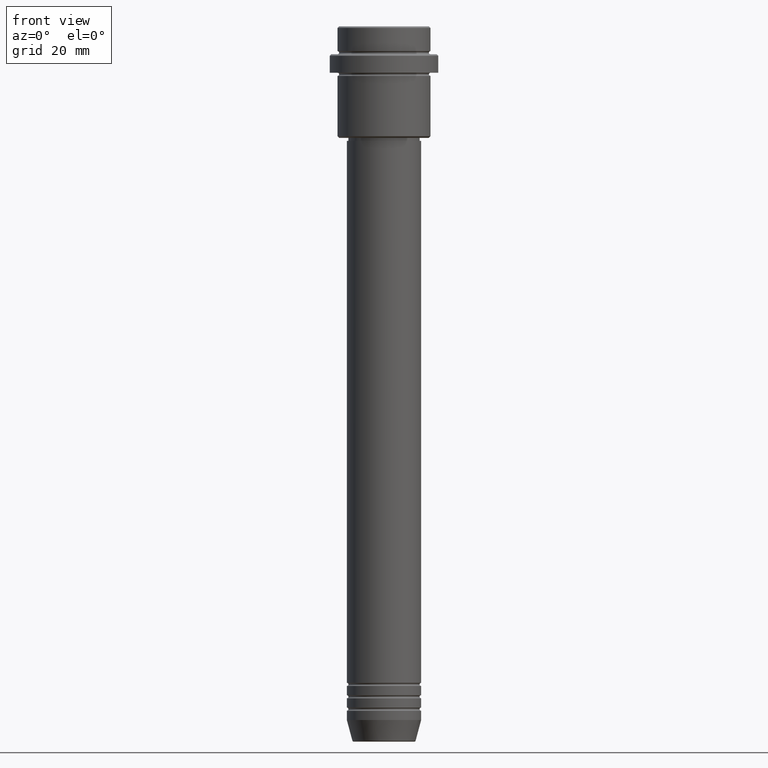
[diagram: clean part render]
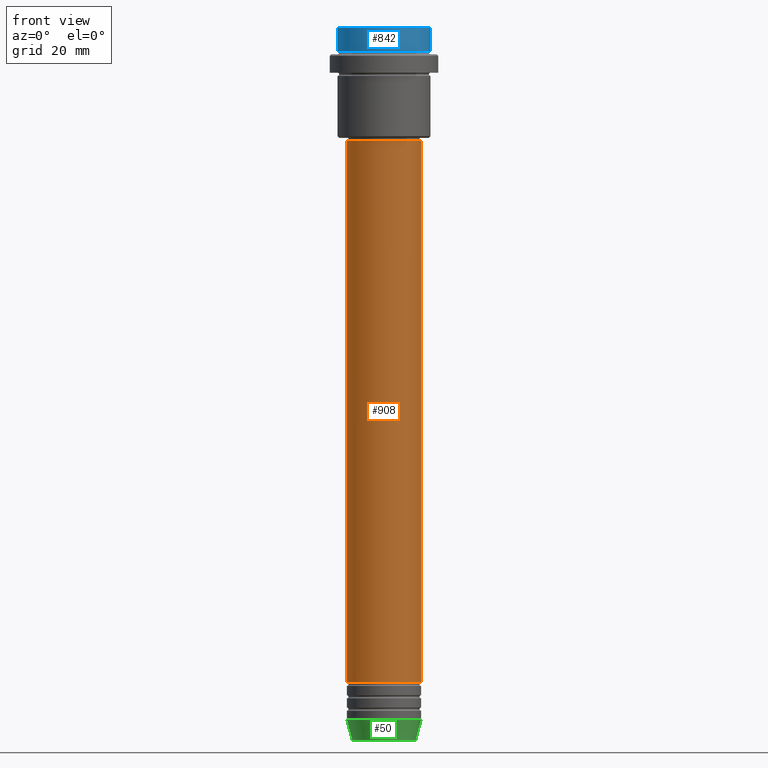
[diagram: same view with three faces highlighted in distinct colors, each labeled with its STEP entity id]
A machine part, front view with three faces highlighted in distinct colors.
Their STEP definitions:

[orange] entity #908 — the highlighted cylindrical surface (partial cylindrical patch) has radius 12 mm, axis along (-0, -0, 1).
#17 = ORIENTED_EDGE ( 'NONE', *, *, #1013, .T. ) ;
#45 = DIRECTION ( 'NONE',  ( 1.000000000000000000, 0.000000000000000000, 0.000000000000000000 ) ) ;
#125 = ORIENTED_EDGE ( 'NONE', *, *, #584, .F. ) ;
#150 = DIRECTION ( 'NONE',  ( 1.000000000000000000, 0.000000000000000000, 0.000000000000000000 ) ) ;
#192 = AXIS2_PLACEMENT_3D ( 'NONE', #869, #770, #150 ) ;
#195 = CARTESIAN_POINT ( 'NONE',  ( -11.99999999999999822, 1.469576158976823750E-15, -37.00000000000001421 ) ) ;
#223 = DIRECTION ( 'NONE',  ( 1.000000000000000000, 0.000000000000000000, 0.000000000000000000 ) ) ;
#261 = ORIENTED_EDGE ( 'NONE', *, *, #996, .F. ) ;
#293 = CARTESIAN_POINT ( 'NONE',  ( 12.00000000000000000, 0.000000000000000000, -211.9999999999999432 ) ) ;
#333 = FACE_OUTER_BOUND ( 'NONE', #503, .T. ) ;
#388 = VERTEX_POINT ( 'NONE', #293 ) ;
#443 = CARTESIAN_POINT ( 'NONE',  ( 12.00000000000000000, 0.000000000000000000, 0.000000000000000000 ) ) ;
#503 = EDGE_LOOP ( 'NONE', ( #125, #1326, #17, #261 ) ) ;
#515 = EDGE_CURVE ( 'NONE', #778, #388, #576, .T. ) ;
#558 = LINE ( 'NONE', #443, #1010 ) ;
#576 = CIRCLE ( 'NONE', #1375, 12.00000000000000000 ) ;
#584 = EDGE_CURVE ( 'NONE', #778, #1086, #936, .T. ) ;
#740 = AXIS2_PLACEMENT_3D ( 'NONE', #785, #1223, #223 ) ;
#763 = CIRCLE ( 'NONE', #740, 11.99999999999999822 ) ;
#770 = DIRECTION ( 'NONE',  ( -0.000000000000000000, -0.000000000000000000, 1.000000000000000000 ) ) ;
#778 = VERTEX_POINT ( 'NONE', #1208 ) ;
#785 = CARTESIAN_POINT ( 'NONE',  ( 0.000000000000000000, 0.000000000000000000, -37.00000000000001421 ) ) ;
#811 = VECTOR ( 'NONE', #1388, 1000.000000000000000 ) ;
#869 = CARTESIAN_POINT ( 'NONE',  ( 0.000000000000000000, 0.000000000000000000, 0.000000000000000000 ) ) ;
#908 = ADVANCED_FACE ( 'NONE', ( #333 ), #1074, .T. ) ;
#916 = CARTESIAN_POINT ( 'NONE',  ( 0.000000000000000000, 0.000000000000000000, -211.9999999999999432 ) ) ;
#921 = DIRECTION ( 'NONE',  ( -0.000000000000000000, -0.000000000000000000, 1.000000000000000000 ) ) ;
#936 = LINE ( 'NONE', #965, #811 ) ;
#965 = CARTESIAN_POINT ( 'NONE',  ( -12.00000000000000000, 1.469576158976823947E-15, 0.000000000000000000 ) ) ;
#996 = EDGE_CURVE ( 'NONE', #1086, #1336, #763, .T. ) ;
#1010 = VECTOR ( 'NONE', #1077, 1000.000000000000000 ) ;
#1013 = EDGE_CURVE ( 'NONE', #388, #1336, #558, .T. ) ;
#1074 = CYLINDRICAL_SURFACE ( 'NONE', #192, 12.00000000000000000 ) ;
#1077 = DIRECTION ( 'NONE',  ( -0.000000000000000000, -0.000000000000000000, 1.000000000000000000 ) ) ;
#1086 = VERTEX_POINT ( 'NONE', #195 ) ;
#1208 = CARTESIAN_POINT ( 'NONE',  ( -12.00000000000000000, 1.469576158976823947E-15, -211.9999999999999432 ) ) ;
#1223 = DIRECTION ( 'NONE',  ( -0.000000000000000000, -0.000000000000000000, 1.000000000000000000 ) ) ;
#1326 = ORIENTED_EDGE ( 'NONE', *, *, #515, .T. ) ;
#1336 = VERTEX_POINT ( 'NONE', #1410 ) ;
#1375 = AXIS2_PLACEMENT_3D ( 'NONE', #916, #921, #45 ) ;
#1388 = DIRECTION ( 'NONE',  ( -0.000000000000000000, -0.000000000000000000, 1.000000000000000000 ) ) ;
#1410 = CARTESIAN_POINT ( 'NONE',  ( 11.99999999999999822, 0.000000000000000000, -37.00000000000001421 ) ) ;

[blue] entity #842 — the highlighted cylindrical surface (partial cylindrical patch) has radius 15 mm, axis along (-0, -0, 1).
#15 = DIRECTION ( 'NONE',  ( -0.000000000000000000, -0.000000000000000000, 1.000000000000000000 ) ) ;
#86 = CARTESIAN_POINT ( 'NONE',  ( 15.00000000000000000, 0.000000000000000000, 0.000000000000000000 ) ) ;
#96 = DIRECTION ( 'NONE',  ( 0.000000000000000000, 0.000000000000000000, -1.000000000000000000 ) ) ;
#100 = EDGE_CURVE ( 'NONE', #270, #226, #1076, .T. ) ;
#101 = VERTEX_POINT ( 'NONE', #455 ) ;
#138 = VERTEX_POINT ( 'NONE', #241 ) ;
#206 = EDGE_CURVE ( 'NONE', #226, #101, #402, .T. ) ;
#220 = CARTESIAN_POINT ( 'NONE',  ( 15.00000000000000000, 0.000000000000000000, -7.999999999999998224 ) ) ;
#226 = VERTEX_POINT ( 'NONE', #220 ) ;
#241 = CARTESIAN_POINT ( 'NONE',  ( -15.00000000000000000, 1.836970198721029589E-15, -0.5000000000000108802 ) ) ;
#270 = VERTEX_POINT ( 'NONE', #812 ) ;
#271 = DIRECTION ( 'NONE',  ( -0.000000000000000000, -0.000000000000000000, 1.000000000000000000 ) ) ;
#296 = EDGE_CURVE ( 'NONE', #270, #138, #731, .T. ) ;
#370 = ORIENTED_EDGE ( 'NONE', *, *, #296, .F. ) ;
#402 = LINE ( 'NONE', #86, #874 ) ;
#455 = CARTESIAN_POINT ( 'NONE',  ( 15.00000000000000000, 0.000000000000000000, -0.5000000000000108802 ) ) ;
#499 = AXIS2_PLACEMENT_3D ( 'NONE', #891, #15, #802 ) ;
#529 = DIRECTION ( 'NONE',  ( -0.000000000000000000, -0.000000000000000000, 1.000000000000000000 ) ) ;
#551 = FACE_OUTER_BOUND ( 'NONE', #1348, .T. ) ;
#554 = DIRECTION ( 'NONE',  ( 1.000000000000000000, 0.000000000000000000, 0.000000000000000000 ) ) ;
#634 = CARTESIAN_POINT ( 'NONE',  ( 0.000000000000000000, 0.000000000000000000, -0.5000000000000108802 ) ) ;
#729 = DIRECTION ( 'NONE',  ( 1.000000000000000000, 0.000000000000000000, 0.000000000000000000 ) ) ;
#731 = LINE ( 'NONE', #1161, #1079 ) ;
#802 = DIRECTION ( 'NONE',  ( 1.000000000000000000, 0.000000000000000000, 0.000000000000000000 ) ) ;
#812 = CARTESIAN_POINT ( 'NONE',  ( -15.00000000000000000, 1.836970198721029589E-15, -7.999999999999998224 ) ) ;
#834 = DIRECTION ( 'NONE',  ( -0.000000000000000000, -0.000000000000000000, 1.000000000000000000 ) ) ;
#842 = ADVANCED_FACE ( 'NONE', ( #551 ), #998, .T. ) ;
#874 = VECTOR ( 'NONE', #529, 1000.000000000000000 ) ;
#891 = CARTESIAN_POINT ( 'NONE',  ( 0.000000000000000000, 0.000000000000000000, -7.999999999999998224 ) ) ;
#945 = CIRCLE ( 'NONE', #1259, 15.00000000000000000 ) ;
#998 = CYLINDRICAL_SURFACE ( 'NONE', #1081, 15.00000000000000000 ) ;
#1003 = ORIENTED_EDGE ( 'NONE', *, *, #206, .T. ) ;
#1067 = EDGE_CURVE ( 'NONE', #101, #138, #945, .T. ) ;
#1070 = ORIENTED_EDGE ( 'NONE', *, *, #1067, .T. ) ;
#1076 = CIRCLE ( 'NONE', #499, 15.00000000000000000 ) ;
#1079 = VECTOR ( 'NONE', #834, 1000.000000000000000 ) ;
#1081 = AXIS2_PLACEMENT_3D ( 'NONE', #1266, #271, #729 ) ;
#1161 = CARTESIAN_POINT ( 'NONE',  ( -15.00000000000000000, 1.836970198721029589E-15, 0.000000000000000000 ) ) ;
#1259 = AXIS2_PLACEMENT_3D ( 'NONE', #634, #96, #554 ) ;
#1266 = CARTESIAN_POINT ( 'NONE',  ( 0.000000000000000000, 0.000000000000000000, 0.000000000000000000 ) ) ;
#1348 = EDGE_LOOP ( 'NONE', ( #370, #1394, #1003, #1070 ) ) ;
#1394 = ORIENTED_EDGE ( 'NONE', *, *, #100, .T. ) ;

[green] entity #50 — the highlighted conical surface has half-angle 15 deg.
#31 = DIRECTION ( 'NONE',  ( 1.000000000000000000, 0.000000000000000000, 0.000000000000000000 ) ) ;
#50 = ADVANCED_FACE ( 'NONE', ( #1120 ), #398, .T. ) ;
#123 = LINE ( 'NONE', #1230, #154 ) ;
#128 = DIRECTION ( 'NONE',  ( 0.2588190451025205174, 0.000000000000000000, 0.9659258262890684232 ) ) ;
#152 = EDGE_CURVE ( 'NONE', #304, #276, #719, .T. ) ;
#154 = VECTOR ( 'NONE', #128, 1000.000000000000114 ) ;
#185 = ORIENTED_EDGE ( 'NONE', *, *, #653, .T. ) ;
#191 = DIRECTION ( 'NONE',  ( -0.000000000000000000, -0.000000000000000000, 1.000000000000000000 ) ) ;
#201 = VERTEX_POINT ( 'NONE', #635 ) ;
#264 = CARTESIAN_POINT ( 'NONE',  ( -12.00000000000000000, 1.469576158976823947E-15, -224.0000000000000284 ) ) ;
#276 = VERTEX_POINT ( 'NONE', #1115 ) ;
#304 = VERTEX_POINT ( 'NONE', #264 ) ;
#398 = CONICAL_SURFACE ( 'NONE', #1373, 12.00000000000000000, 0.2617993877991491303 ) ;
#452 = CARTESIAN_POINT ( 'NONE',  ( 0.000000000000000000, 0.000000000000000000, -224.0000000000000284 ) ) ;
#469 = DIRECTION ( 'NONE',  ( -0.000000000000000000, -0.000000000000000000, 1.000000000000000000 ) ) ;
#479 = AXIS2_PLACEMENT_3D ( 'NONE', #452, #586, #1124 ) ;
#519 = LINE ( 'NONE', #964, #1127 ) ;
#577 = ORIENTED_EDGE ( 'NONE', *, *, #152, .F. ) ;
#586 = DIRECTION ( 'NONE',  ( -0.000000000000000000, -0.000000000000000000, 1.000000000000000000 ) ) ;
#596 = ORIENTED_EDGE ( 'NONE', *, *, #1029, .T. ) ;
#635 = CARTESIAN_POINT ( 'NONE',  ( -10.22365507213720015, 1.360806402472383139E-15, -230.6294095225512990 ) ) ;
#653 = EDGE_CURVE ( 'NONE', #201, #990, #1350, .T. ) ;
#719 = CIRCLE ( 'NONE', #479, 12.00000000000000000 ) ;
#762 = ORIENTED_EDGE ( 'NONE', *, *, #972, .F. ) ;
#893 = CARTESIAN_POINT ( 'NONE',  ( 10.22365507213720015, 0.000000000000000000, -230.6294095225512990 ) ) ;
#964 = CARTESIAN_POINT ( 'NONE',  ( -12.00000000000000000, 1.469576158976823947E-15, -224.0000000000000284 ) ) ;
#972 = EDGE_CURVE ( 'NONE', #201, #304, #519, .T. ) ;
#990 = VERTEX_POINT ( 'NONE', #893 ) ;
#1029 = EDGE_CURVE ( 'NONE', #990, #276, #123, .T. ) ;
#1082 = DIRECTION ( 'NONE',  ( 1.000000000000000000, 0.000000000000000000, 0.000000000000000000 ) ) ;
#1111 = EDGE_LOOP ( 'NONE', ( #762, #185, #596, #577 ) ) ;
#1115 = CARTESIAN_POINT ( 'NONE',  ( 12.00000000000000000, 0.000000000000000000, -224.0000000000000284 ) ) ;
#1120 = FACE_OUTER_BOUND ( 'NONE', #1111, .T. ) ;
#1124 = DIRECTION ( 'NONE',  ( 1.000000000000000000, 0.000000000000000000, 0.000000000000000000 ) ) ;
#1127 = VECTOR ( 'NONE', #1387, 1000.000000000000114 ) ;
#1140 = CARTESIAN_POINT ( 'NONE',  ( 0.000000000000000000, 0.000000000000000000, -224.0000000000000284 ) ) ;
#1190 = CARTESIAN_POINT ( 'NONE',  ( 0.000000000000000000, 0.000000000000000000, -230.6294095225512990 ) ) ;
#1222 = AXIS2_PLACEMENT_3D ( 'NONE', #1190, #191, #1082 ) ;
#1230 = CARTESIAN_POINT ( 'NONE',  ( 12.00000000000000000, 0.000000000000000000, -224.0000000000000284 ) ) ;
#1350 = CIRCLE ( 'NONE', #1222, 10.22365507213720015 ) ;
#1373 = AXIS2_PLACEMENT_3D ( 'NONE', #1140, #469, #31 ) ;
#1387 = DIRECTION ( 'NONE',  ( -0.2588190451025205174, 3.169619151431761243E-17, 0.9659258262890684232 ) ) ;